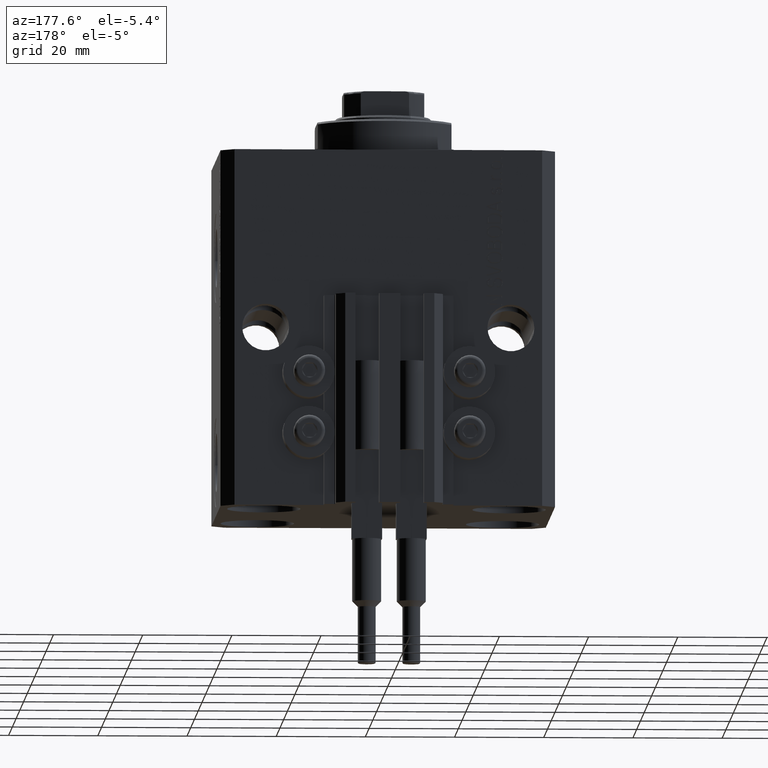
[diagram: clean part render]
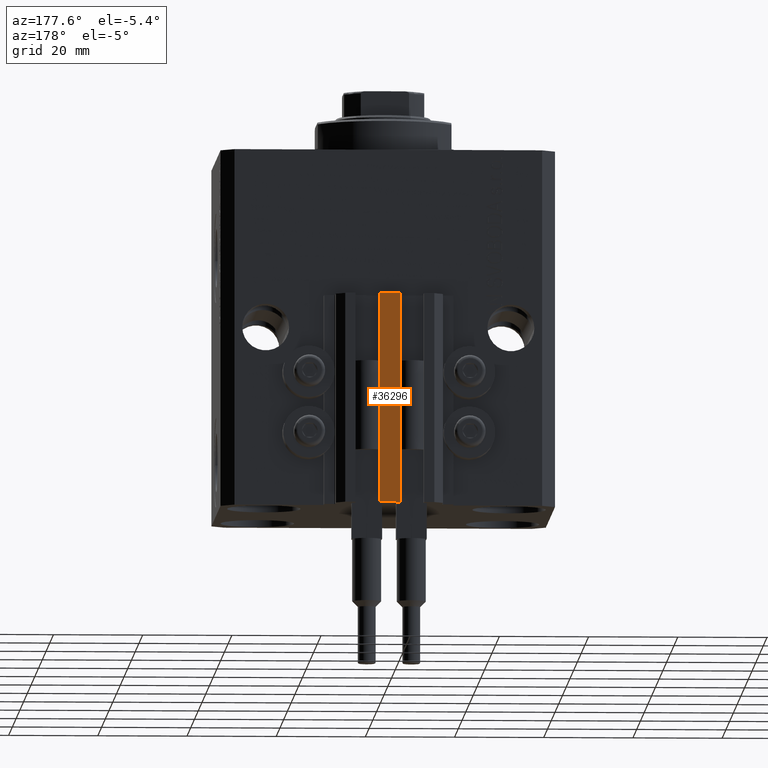
[diagram: same view with one face highlighted and labeled with its STEP entity id]
A machine part, auxiliary view. The second image highlights one B-rep face of the part: STEP entity #36296.
In plain terms, the highlighted planar face has unit normal (0, -1, 0).
Its self-contained STEP definition (entity closure, byte-faithful):
#276 = ORIENTED_EDGE ( 'NONE', *, *, #9016, .F. ) ;
#2739 = ORIENTED_EDGE ( 'NONE', *, *, #32565, .F. ) ;
#7336 = EDGE_LOOP ( 'NONE', ( #17806, #276, #2739, #33261 ) ) ;
#7721 = CARTESIAN_POINT ( 'NONE',  ( 2.349999999999999645, 35.50000000000001421, -33.00000000000000000 ) ) ;
#7916 = LINE ( 'NONE', #34186, #28051 ) ;
#8150 = CARTESIAN_POINT ( 'NONE',  ( -2.350000000000003642, 35.50000000000001421, -33.00000000000000000 ) ) ;
#8794 = DIRECTION ( 'NONE',  ( 1.000000000000000000, 0.000000000000000000, 0.000000000000000000 ) ) ;
#9016 = EDGE_CURVE ( 'NONE', #36892, #30941, #7916, .T. ) ;
#11017 = DIRECTION ( 'NONE',  ( 0.000000000000000000, 0.000000000000000000, 1.000000000000000000 ) ) ;
#13254 = DIRECTION ( 'NONE',  ( 0.000000000000000000, -0.000000000000000000, -1.000000000000000000 ) ) ;
#16844 = PLANE ( 'NONE',  #40815 ) ;
#17647 = EDGE_CURVE ( 'NONE', #45905, #21534, #36584, .T. ) ;
#17806 = ORIENTED_EDGE ( 'NONE', *, *, #22352, .T. ) ;
#21534 = VERTEX_POINT ( 'NONE', #46720 ) ;
#21617 = CARTESIAN_POINT ( 'NONE',  ( -2.350000000000003642, 35.50000000000001421, -80.00000000000000000 ) ) ;
#22352 = EDGE_CURVE ( 'NONE', #21534, #30941, #26465, .T. ) ;
#26465 = LINE ( 'NONE', #8150, #46859 ) ;
#27112 = LINE ( 'NONE', #41833, #40939 ) ;
#28051 = VECTOR ( 'NONE', #32591, 1000.000000000000000 ) ;
#28218 = VECTOR ( 'NONE', #11017, 1000.000000000000000 ) ;
#30941 = VERTEX_POINT ( 'NONE', #7721 ) ;
#32565 = EDGE_CURVE ( 'NONE', #45905, #36892, #27112, .T. ) ;
#32591 = DIRECTION ( 'NONE',  ( 0.000000000000000000, 0.000000000000000000, 1.000000000000000000 ) ) ;
#33261 = ORIENTED_EDGE ( 'NONE', *, *, #17647, .T. ) ;
#34186 = CARTESIAN_POINT ( 'NONE',  ( 2.349999999999999645, 35.50000000000001421, -80.00000000000000000 ) ) ;
#34487 = CARTESIAN_POINT ( 'NONE',  ( -2.350000000000003642, 35.50000000000001421, -80.00000000000000000 ) ) ;
#34965 = FACE_OUTER_BOUND ( 'NONE', #7336, .T. ) ;
#36296 = ADVANCED_FACE ( 'NONE', ( #34965 ), #16844, .F. ) ;
#36584 = LINE ( 'NONE', #21617, #28218 ) ;
#36892 = VERTEX_POINT ( 'NONE', #42328 ) ;
#37812 = DIRECTION ( 'NONE',  ( 1.000000000000000000, 0.000000000000000000, 0.000000000000000000 ) ) ;
#40815 = AXIS2_PLACEMENT_3D ( 'NONE', #34487, #42207, #13254 ) ;
#40939 = VECTOR ( 'NONE', #8794, 1000.000000000000000 ) ;
#41833 = CARTESIAN_POINT ( 'NONE',  ( -2.350000000000003642, 35.50000000000001421, -80.00000000000000000 ) ) ;
#42207 = DIRECTION ( 'NONE',  ( 0.000000000000000000, -1.000000000000000000, 0.000000000000000000 ) ) ;
#42328 = CARTESIAN_POINT ( 'NONE',  ( 2.349999999999999645, 35.50000000000001421, -80.00000000000000000 ) ) ;
#44014 = CARTESIAN_POINT ( 'NONE',  ( -2.350000000000003642, 35.50000000000001421, -80.00000000000000000 ) ) ;
#45905 = VERTEX_POINT ( 'NONE', #44014 ) ;
#46720 = CARTESIAN_POINT ( 'NONE',  ( -2.350000000000003642, 35.50000000000001421, -33.00000000000000000 ) ) ;
#46859 = VECTOR ( 'NONE', #37812, 1000.000000000000000 ) ;